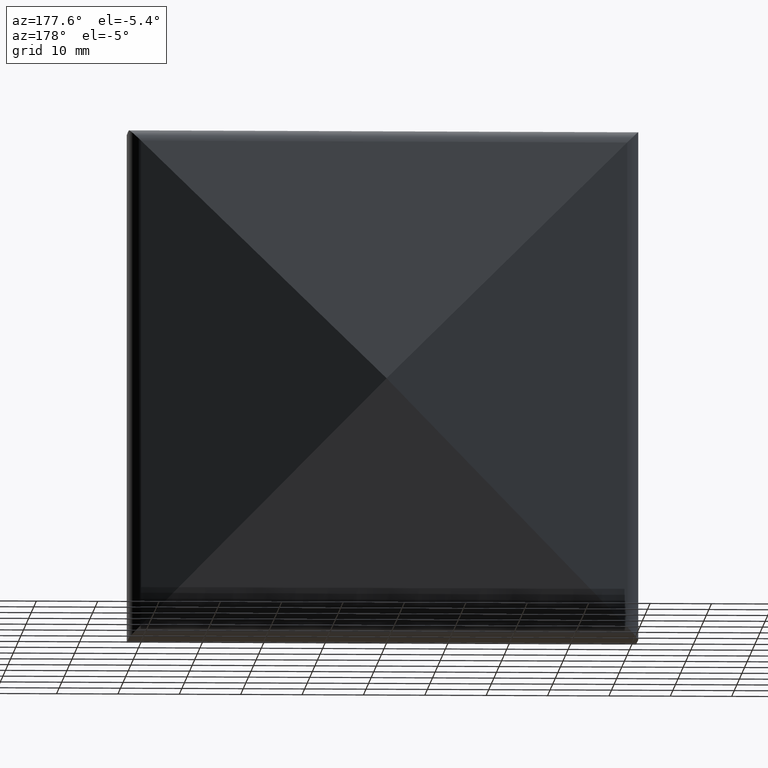
[diagram: clean part render]
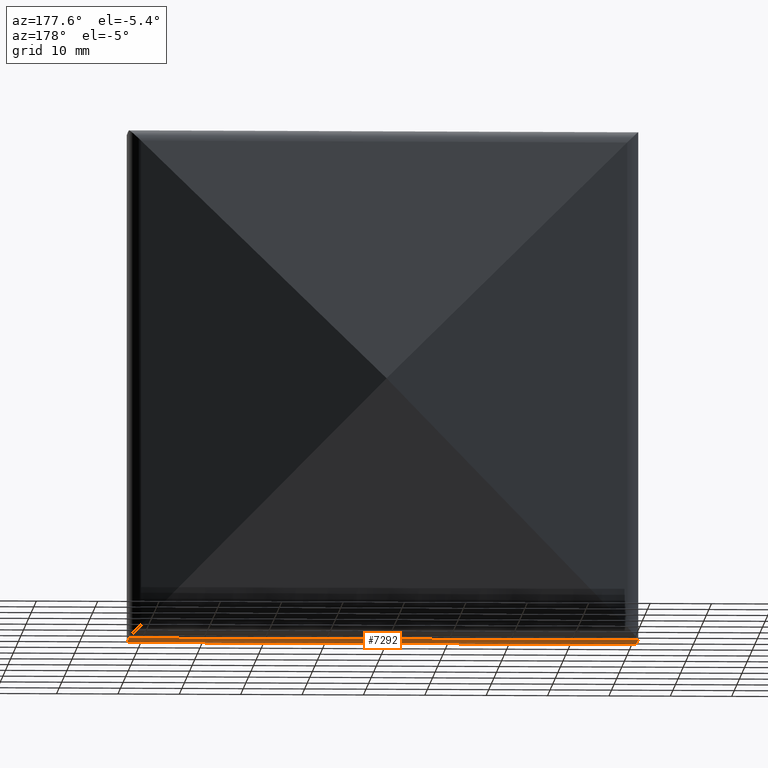
[diagram: same view with one face highlighted and labeled with its STEP entity id]
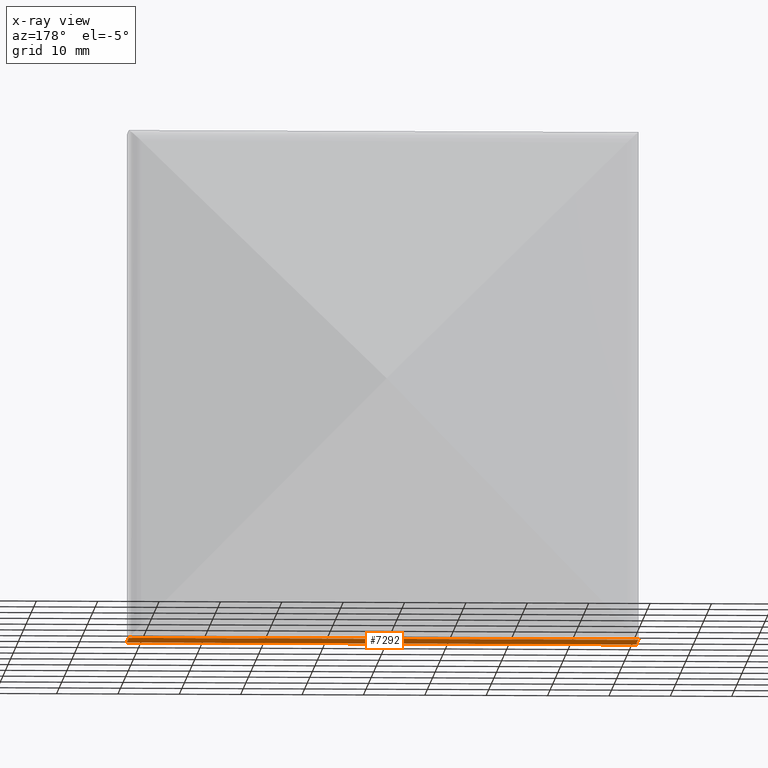
[diagram: x-ray of the same camera — body ghosted, the highlighted face saturated]
A machine part, auxiliary view. The second image highlights one B-rep face of the part: STEP entity #7292.
The next image is the same camera in x-ray: the body ghosted, the highlighted face saturated — about 0% of this face is hidden behind the body in this view.
In plain terms, the highlighted planar face has unit normal (0, 0, 1).
Its self-contained STEP definition (entity closure, byte-faithful):
#255 = DIRECTION ( 'NONE',  ( -1.000000000000000000, -0.0000000000000000000, -0.0000000000000000000 ) ) ;
#641 = EDGE_CURVE ( 'NONE', #13052, #3439, #13778, .T. ) ;
#888 = CARTESIAN_POINT ( 'NONE',  ( -41.50000000000000700, 0.0000000000000000000, -41.49999999999999300 ) ) ;
#2244 = DIRECTION ( 'NONE',  ( 0.0000000000000000000, 0.0000000000000000000, 1.000000000000000000 ) ) ;
#2369 = EDGE_CURVE ( 'NONE', #13566, #3025, #10925, .T. ) ;
#2506 = CARTESIAN_POINT ( 'NONE',  ( -41.50000000000000700, 0.0000000000000000000, -41.49999999999999300 ) ) ;
#3025 = VERTEX_POINT ( 'NONE', #6599 ) ;
#3439 = VERTEX_POINT ( 'NONE', #888 ) ;
#5287 = CARTESIAN_POINT ( 'NONE',  ( -41.50000000000004300, 8.030986300481739400, -41.49999999999997900 ) ) ;
#5647 = ORIENTED_EDGE ( 'NONE', *, *, #641, .T. ) ;
#6599 = CARTESIAN_POINT ( 'NONE',  ( 41.50000000000000000, 8.030986300481739400, -41.50000000000002100 ) ) ;
#6706 = DIRECTION ( 'NONE',  ( -0.0000000000000000000, -1.000000000000000000, -0.0000000000000000000 ) ) ;
#6787 = VECTOR ( 'NONE', #255, 1000.000000000000000 ) ;
#7029 = CARTESIAN_POINT ( 'NONE',  ( 41.49999999999999300, 0.0000000000000000000, -41.49999999999999300 ) ) ;
#7292 = ADVANCED_FACE ( 'NONE', ( #12596 ), #11835, .F. ) ;
#8282 = EDGE_CURVE ( 'NONE', #3025, #13052, #13752, .T. ) ;
#8804 = AXIS2_PLACEMENT_3D ( 'NONE', #9816, #2244, #12871 ) ;
#9388 = ORIENTED_EDGE ( 'NONE', *, *, #9700, .F. ) ;
#9449 = EDGE_LOOP ( 'NONE', ( #9388, #10574, #12447, #5647 ) ) ;
#9700 = EDGE_CURVE ( 'NONE', #13566, #3439, #12553, .T. ) ;
#9816 = CARTESIAN_POINT ( 'NONE',  ( -41.50000000000000700, 25.00000000000000000, -41.49999999999999300 ) ) ;
#10574 = ORIENTED_EDGE ( 'NONE', *, *, #2369, .T. ) ;
#10850 = CARTESIAN_POINT ( 'NONE',  ( -41.50000000000004300, 8.030986300481739400, -41.49999999999997900 ) ) ;
#10925 = LINE ( 'NONE', #5287, #11405 ) ;
#11405 = VECTOR ( 'NONE', #11754, 1000.000000000000000 ) ;
#11615 = CARTESIAN_POINT ( 'NONE',  ( 41.49999999999999300, 25.00000000000000000, -41.49999999999999300 ) ) ;
#11754 = DIRECTION ( 'NONE',  ( 1.000000000000000000, -0.0000000000000000000, -4.440892098500625700E-016 ) ) ;
#11835 = PLANE ( 'NONE',  #8804 ) ;
#12075 = VECTOR ( 'NONE', #6706, 1000.000000000000000 ) ;
#12087 = VECTOR ( 'NONE', #13786, 1000.000000000000000 ) ;
#12447 = ORIENTED_EDGE ( 'NONE', *, *, #8282, .T. ) ;
#12553 = LINE ( 'NONE', #13072, #12075 ) ;
#12596 = FACE_OUTER_BOUND ( 'NONE', #9449, .T. ) ;
#12871 = DIRECTION ( 'NONE',  ( 1.000000000000000000, 0.0000000000000000000, -0.0000000000000000000 ) ) ;
#13052 = VERTEX_POINT ( 'NONE', #7029 ) ;
#13072 = CARTESIAN_POINT ( 'NONE',  ( -41.50000000000000700, 25.00000000000000000, -41.49999999999999300 ) ) ;
#13566 = VERTEX_POINT ( 'NONE', #10850 ) ;
#13752 = LINE ( 'NONE', #11615, #12087 ) ;
#13778 = LINE ( 'NONE', #2506, #6787 ) ;
#13786 = DIRECTION ( 'NONE',  ( -0.0000000000000000000, -1.000000000000000000, -0.0000000000000000000 ) ) ;